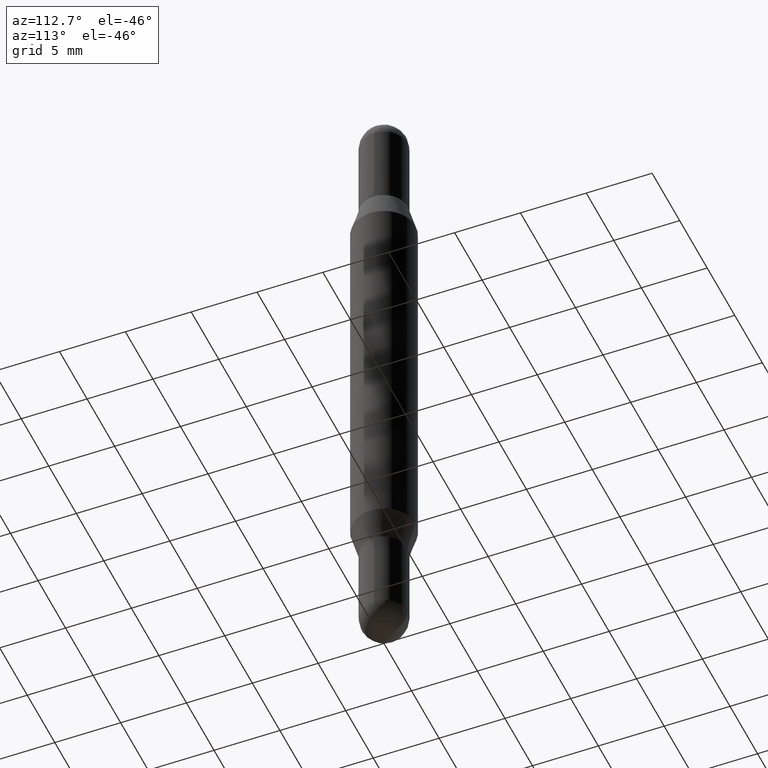
[diagram: clean part render]
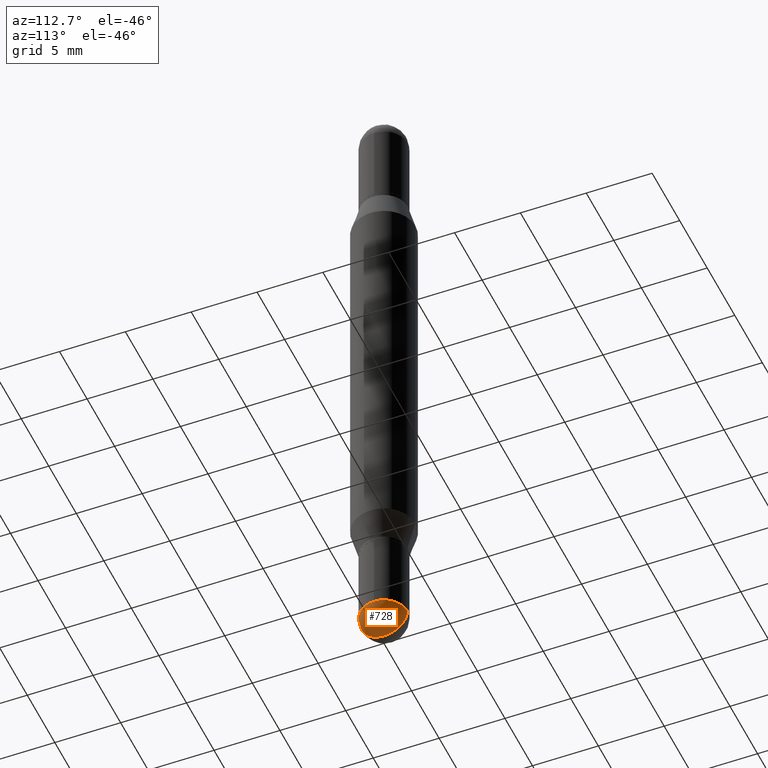
[diagram: same view with one face highlighted and labeled with its STEP entity id]
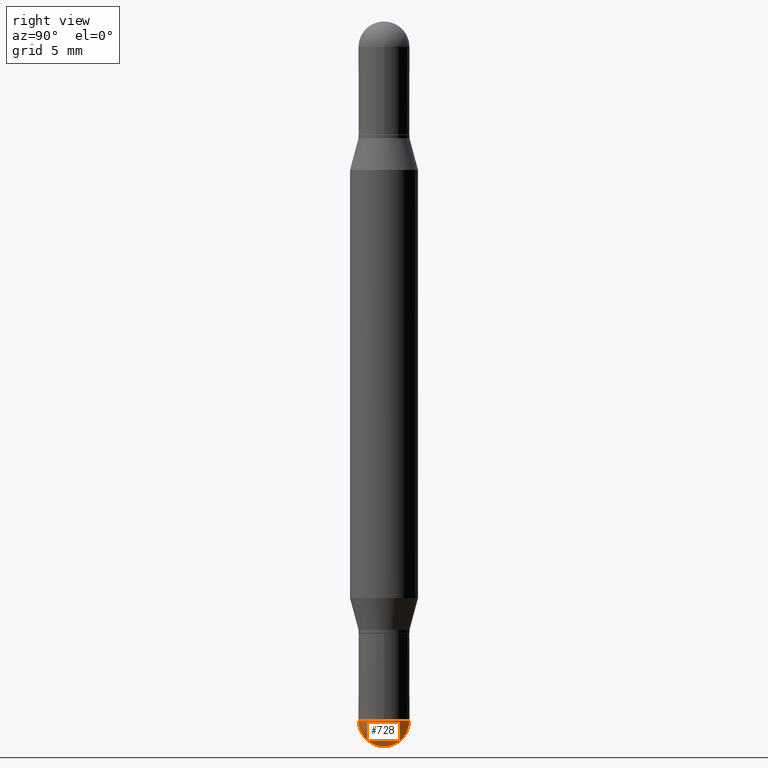
[diagram: same view with one face highlighted and labeled with its STEP entity id]
A machine part, auxiliary view. The second image highlights one B-rep face of the part: STEP entity #728.
A second angle (right view) of the same face is appended — the face is thin or edge-on in the first view.
In plain terms, the highlighted spherical surface has radius 1.7856 mm.
Its self-contained STEP definition (entity closure, byte-faithful):
#9 = FACE_OUTER_BOUND ( 'NONE', #526, .T. ) ;
#20 = DIRECTION ( 'NONE',  ( 1.000000000000000000, -6.982962677686261189E-15, 0.000000000000000000 ) ) ;
#48 = EDGE_CURVE ( 'NONE', #132, #633, #751, .T. ) ;
#70 = CARTESIAN_POINT ( 'NONE',  ( -4.995115432393033060E-16, -0.07030000000000674598, -1.929699999999999527 ) ) ;
#90 = CARTESIAN_POINT ( 'NONE',  ( 4.719021155295457704E-29, -6.737511539565617508E-15, -1.929699999999999971 ) ) ;
#97 = DIRECTION ( 'NONE',  ( -1.000000000000000000, 6.982962677686265922E-15, -4.883557194083112340E-29 ) ) ;
#106 = VERTEX_POINT ( 'NONE', #306 ) ;
#132 = VERTEX_POINT ( 'NONE', #1049 ) ;
#149 = ORIENTED_EDGE ( 'NONE', *, *, #48, .F. ) ;
#158 = EDGE_CURVE ( 'NONE', #106, #851, #975, .T. ) ;
#185 = DIRECTION ( 'NONE',  ( 1.000000000000000000, -6.982962677686265922E-15, 4.883557194083112340E-29 ) ) ;
#306 = CARTESIAN_POINT ( 'NONE',  ( 0.07030000000000004301, -6.806468296007768871E-15, -1.929699999999999971 ) ) ;
#342 = CARTESIAN_POINT ( 'NONE',  ( 4.755767650741496407E-29, -6.684888466606255625E-15, -1.929699999999999971 ) ) ;
#356 = DIRECTION ( 'NONE',  ( 6.982962677686265922E-15, 1.000000000000000000, -3.885985766236503808E-15 ) ) ;
#366 = CARTESIAN_POINT ( 'NONE',  ( 4.909022762413921804E-16, 0.07029999999999332616, -1.929700000000000193 ) ) ;
#402 = DIRECTION ( 'NONE',  ( -1.000000000000000000, 7.105427357601001070E-15, -4.926315508542082329E-29 ) ) ;
#406 = CARTESIAN_POINT ( 'NONE',  ( 4.755767650741496407E-29, -6.684888466606255625E-15, -1.929699999999999971 ) ) ;
#455 = ORIENTED_EDGE ( 'NONE', *, *, #665, .F. ) ;
#458 = SPHERICAL_SURFACE ( 'NONE', #779, 0.07030000000000002913 ) ;
#506 = DIRECTION ( 'NONE',  ( -2.445468806185136597E-29, 3.491481338843145583E-15, 1.000000000000000000 ) ) ;
#518 = AXIS2_PLACEMENT_3D ( 'NONE', #90, #783, #20 ) ;
#526 = EDGE_LOOP ( 'NONE', ( #149, #969, #1019, #455 ) ) ;
#576 = DIRECTION ( 'NONE',  ( -7.105427357601001859E-15, -1.000000000000000000, 0.000000000000000000 ) ) ;
#591 = AXIS2_PLACEMENT_3D ( 'NONE', #962, #506, #680 ) ;
#632 = CIRCLE ( 'NONE', #1046, 0.07030000000000002913 ) ;
#633 = VERTEX_POINT ( 'NONE', #70 ) ;
#665 = EDGE_CURVE ( 'NONE', #633, #106, #670, .T. ) ;
#670 = CIRCLE ( 'NONE', #591, 0.07030000000000004301 ) ;
#680 = DIRECTION ( 'NONE',  ( 1.000000000000000000, -6.982962677686261189E-15, 0.000000000000000000 ) ) ;
#702 = EDGE_CURVE ( 'NONE', #132, #851, #632, .T. ) ;
#710 = CARTESIAN_POINT ( 'NONE',  ( 4.755767650741496407E-29, -6.684888466606255625E-15, -1.929699999999999971 ) ) ;
#728 = ADVANCED_FACE ( 'NONE', ( #9 ), #458, .T. ) ;
#751 = CIRCLE ( 'NONE', #839, 0.07030000000000002913 ) ;
#779 = AXIS2_PLACEMENT_3D ( 'NONE', #342, #97, #356 ) ;
#783 = DIRECTION ( 'NONE',  ( -2.445468806185136597E-29, 3.491481338843145583E-15, 1.000000000000000000 ) ) ;
#839 = AXIS2_PLACEMENT_3D ( 'NONE', #406, #402, #576 ) ;
#851 = VERTEX_POINT ( 'NONE', #366 ) ;
#962 = CARTESIAN_POINT ( 'NONE',  ( 4.719021155295457704E-29, -6.737511539565617508E-15, -1.929699999999999971 ) ) ;
#966 = DIRECTION ( 'NONE',  ( 6.982962677686266711E-15, 1.000000000000000000, 0.000000000000000000 ) ) ;
#969 = ORIENTED_EDGE ( 'NONE', *, *, #702, .T. ) ;
#975 = CIRCLE ( 'NONE', #518, 0.07030000000000004301 ) ;
#1019 = ORIENTED_EDGE ( 'NONE', *, *, #158, .F. ) ;
#1046 = AXIS2_PLACEMENT_3D ( 'NONE', #710, #185, #966 ) ;
#1049 = CARTESIAN_POINT ( 'NONE',  ( 4.930690017322777259E-29, -6.926034971227925253E-15, -2.000000000000000000 ) ) ;